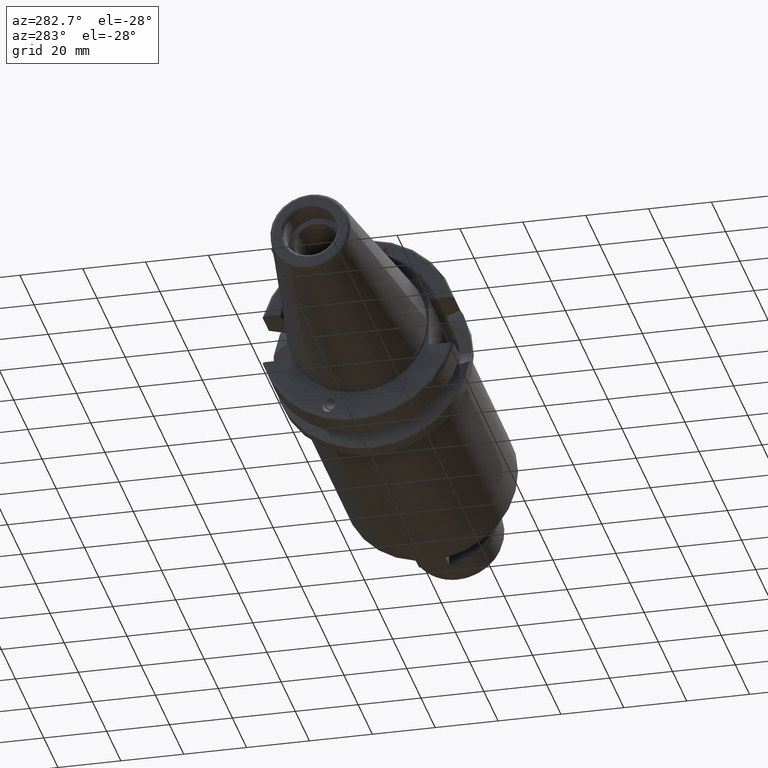
[diagram: clean part render]
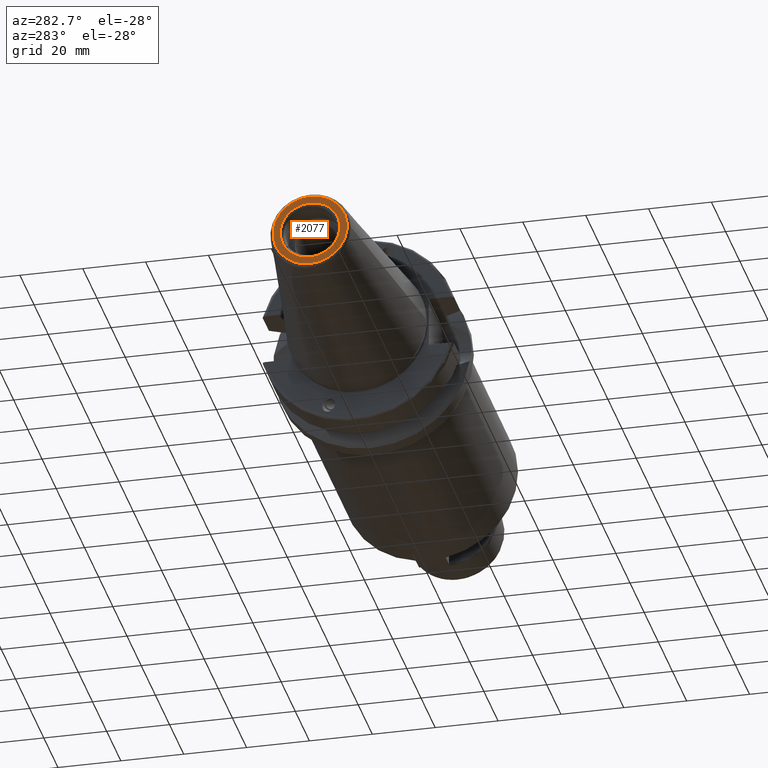
[diagram: same view with one face highlighted and labeled with its STEP entity id]
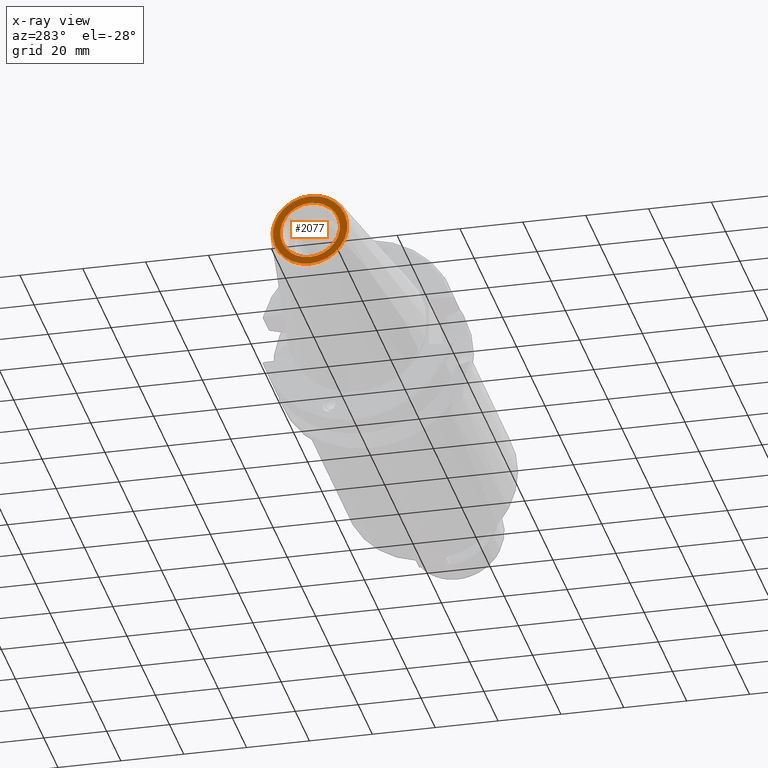
[diagram: x-ray of the same camera — body ghosted, the highlighted face saturated]
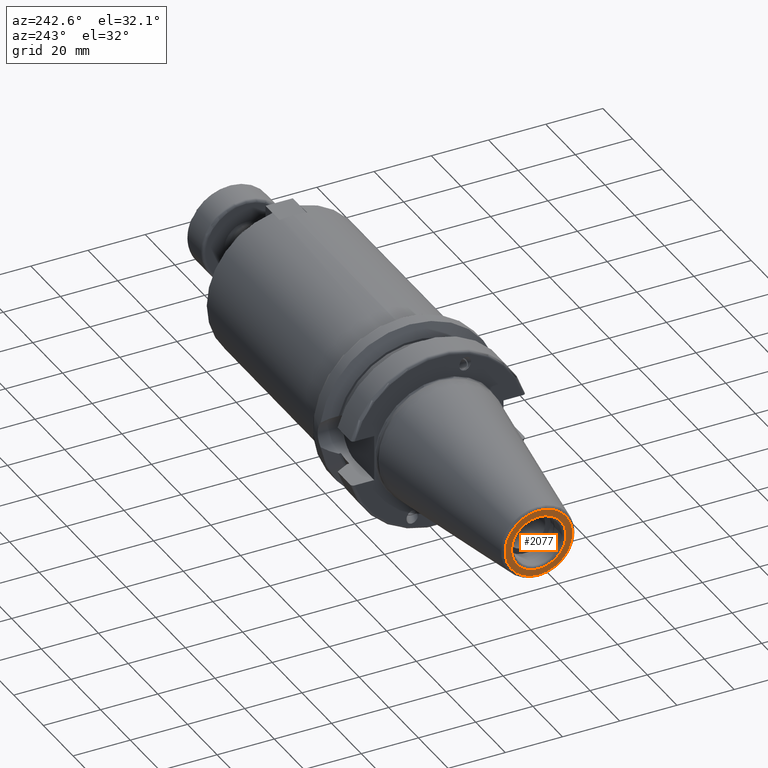
[diagram: same view with one face highlighted and labeled with its STEP entity id]
A machine part, auxiliary view. The second image highlights one B-rep face of the part: STEP entity #2077.
The next image is the same camera in x-ray: the body ghosted, the highlighted face saturated — about 0% of this face is hidden behind the body in this view.
A second angle (auxiliary view) of the same face is appended — the face is thin or edge-on in the first view.
In plain terms, the highlighted planar face has unit normal (-1, 0, 0).
Its self-contained STEP definition (entity closure, byte-faithful):
#134=FACE_BOUND('',#527,.T.);
#231=CIRCLE('',#2353,11.8227555970304);
#251=CIRCLE('',#2391,9.5);
#385=FACE_OUTER_BOUND('',#526,.T.);
#526=EDGE_LOOP('',(#1733));
#527=EDGE_LOOP('',(#1734));
#966=VERTEX_POINT('',#3734);
#978=VERTEX_POINT('',#3791);
#1214=EDGE_CURVE('',#966,#966,#231,.T.);
#1240=EDGE_CURVE('',#978,#978,#251,.T.);
#1733=ORIENTED_EDGE('',*,*,#1214,.F.);
#1734=ORIENTED_EDGE('',*,*,#1240,.T.);
#1971=PLANE('',#2393);
#2077=ADVANCED_FACE('',(#385,#134),#1971,.T.);
#2353=AXIS2_PLACEMENT_3D('',#3736,#2816,#2817);
#2391=AXIS2_PLACEMENT_3D('',#3792,#2898,#2899);
#2393=AXIS2_PLACEMENT_3D('',#3794,#2902,#2903);
#2816=DIRECTION('center_axis',(1.,0.,0.));
#2817=DIRECTION('ref_axis',(0.,0.,-1.));
#2898=DIRECTION('center_axis',(1.,0.,0.));
#2899=DIRECTION('ref_axis',(0.,0.,-1.));
#2902=DIRECTION('center_axis',(-1.,0.,0.));
#2903=DIRECTION('ref_axis',(0.,0.,1.));
#3734=CARTESIAN_POINT('',(-65.4,-1.44786997990048E-15,11.8227555970304));
#3736=CARTESIAN_POINT('Origin',(-65.4,0.,0.));
#3791=CARTESIAN_POINT('',(-65.4,-1.16341445918999E-15,9.5));
#3792=CARTESIAN_POINT('Origin',(-65.4,0.,0.));
#3794=CARTESIAN_POINT('Origin',(-65.4,11.8227555970304,0.));